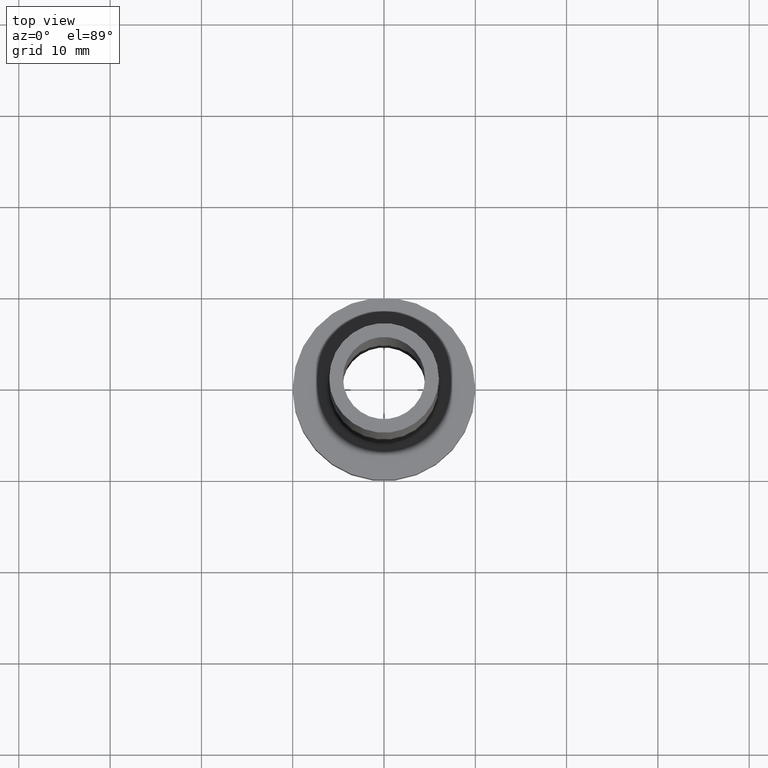
[diagram: clean part render]
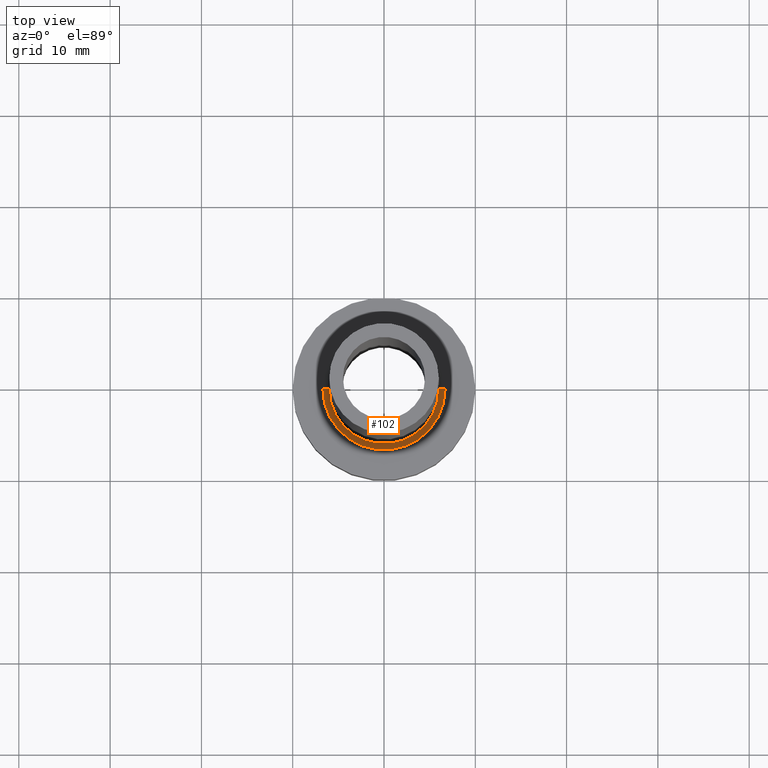
[diagram: same view with one face highlighted and labeled with its STEP entity id]
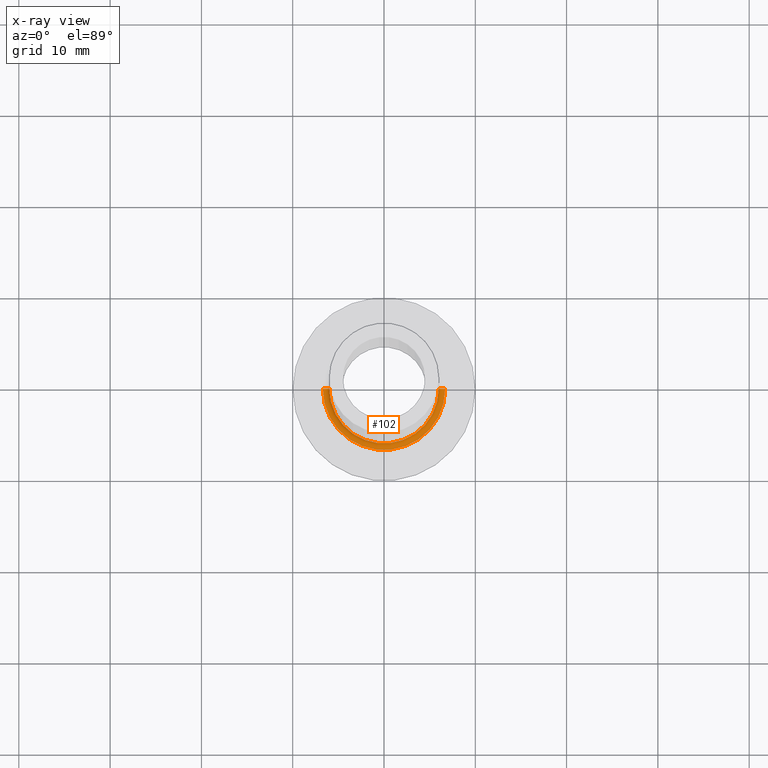
[diagram: x-ray of the same camera — body ghosted, the highlighted face saturated]
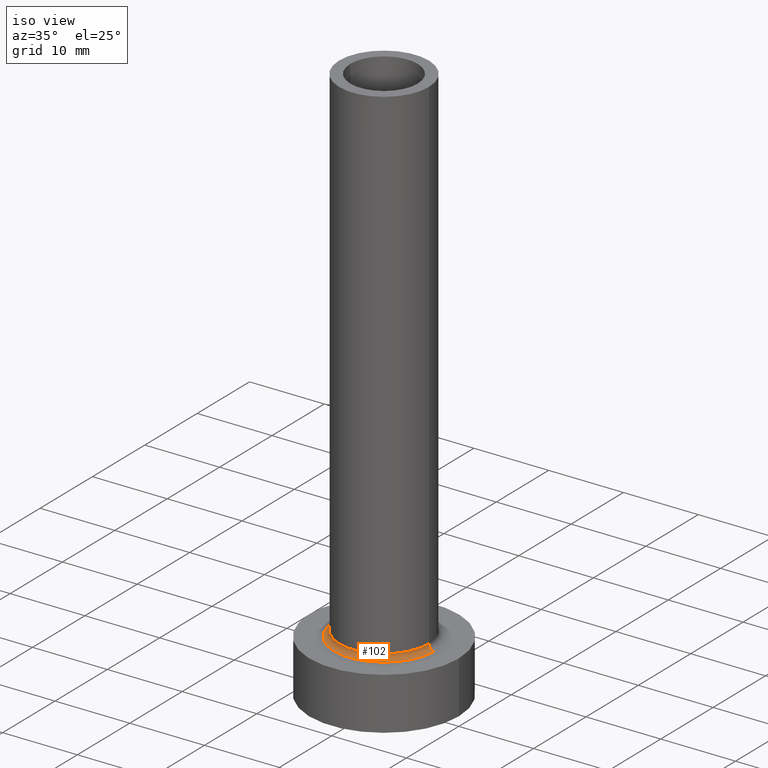
[diagram: same view with one face highlighted and labeled with its STEP entity id]
A machine part, top view. The second image highlights one B-rep face of the part: STEP entity #102.
The next image is the same camera in x-ray: the body ghosted, the highlighted face saturated — about 0% of this face is hidden behind the body in this view.
A second angle (iso view) of the same face is appended — the face is thin or edge-on in the first view.
In plain terms, the highlighted toroidal blend (fillet) surface has major radius 6.7 mm and minor (blend) radius 0.7 mm.
Its self-contained STEP definition (entity closure, byte-faithful):
#3 = VERTEX_POINT ( 'NONE', #38 ) ;
#24 = FACE_OUTER_BOUND ( 'NONE', #241, .T. ) ;
#38 = CARTESIAN_POINT ( 'NONE',  ( -6.000000000000000888, 0.000000000000000000, 7.699999999999998401 ) ) ;
#42 = VERTEX_POINT ( 'NONE', #179 ) ;
#50 = EDGE_CURVE ( 'NONE', #3, #391, #178, .T. ) ;
#54 = AXIS2_PLACEMENT_3D ( 'NONE', #327, #80, #294 ) ;
#61 = CARTESIAN_POINT ( 'NONE',  ( 6.700000000000001066, 0.000000000000000000, 6.999999999999999112 ) ) ;
#66 = CARTESIAN_POINT ( 'NONE',  ( -6.700000000000001066, 8.205133554287267548E-16, 7.699999999999998401 ) ) ;
#80 = DIRECTION ( 'NONE',  ( 0.000000000000000000, -1.000000000000000000, 0.000000000000000000 ) ) ;
#93 = DIRECTION ( 'NONE',  ( -0.000000000000000000, -0.000000000000000000, -1.000000000000000000 ) ) ;
#97 = CARTESIAN_POINT ( 'NONE',  ( 0.000000000000000000, 0.000000000000000000, 7.699999999999998401 ) ) ;
#102 = ADVANCED_FACE ( 'NONE', ( #24 ), #166, .F. ) ;
#104 = VERTEX_POINT ( 'NONE', #61 ) ;
#150 = EDGE_CURVE ( 'NONE', #3, #42, #260, .T. ) ;
#166 = TOROIDAL_SURFACE ( 'NONE', #373, 6.700000000000001066, 0.6999999999999999556 ) ;
#178 = CIRCLE ( 'NONE', #438, 6.000000000000000888 ) ;
#179 = CARTESIAN_POINT ( 'NONE',  ( -6.700000000000001066, 8.205133554287267548E-16, 6.999999999999999112 ) ) ;
#214 = DIRECTION ( 'NONE',  ( 1.224646799147353207E-16, 1.000000000000000000, -0.000000000000000000 ) ) ;
#215 = ORIENTED_EDGE ( 'NONE', *, *, #50, .F. ) ;
#217 = EDGE_CURVE ( 'NONE', #391, #104, #400, .T. ) ;
#236 = DIRECTION ( 'NONE',  ( 1.000000000000000000, 0.000000000000000000, 0.000000000000000000 ) ) ;
#241 = EDGE_LOOP ( 'NONE', ( #215, #277, #455, #250 ) ) ;
#250 = ORIENTED_EDGE ( 'NONE', *, *, #217, .F. ) ;
#251 = DIRECTION ( 'NONE',  ( 1.000000000000000000, 0.000000000000000000, 0.000000000000000000 ) ) ;
#254 = AXIS2_PLACEMENT_3D ( 'NONE', #66, #214, #350 ) ;
#260 = CIRCLE ( 'NONE', #254, 0.7000000000000000666 ) ;
#269 = CARTESIAN_POINT ( 'NONE',  ( 6.000000000000000888, 7.347880794884120722E-16, 7.699999999999998401 ) ) ;
#277 = ORIENTED_EDGE ( 'NONE', *, *, #150, .T. ) ;
#286 = DIRECTION ( 'NONE',  ( 0.000000000000000000, 0.000000000000000000, 1.000000000000000000 ) ) ;
#294 = DIRECTION ( 'NONE',  ( 0.000000000000000000, 0.000000000000000000, -1.000000000000000000 ) ) ;
#305 = DIRECTION ( 'NONE',  ( 1.000000000000000000, 0.000000000000000000, 0.000000000000000000 ) ) ;
#317 = CARTESIAN_POINT ( 'NONE',  ( 0.000000000000000000, 0.000000000000000000, 7.699999999999998401 ) ) ;
#327 = CARTESIAN_POINT ( 'NONE',  ( 6.700000000000001066, 0.000000000000000000, 7.699999999999998401 ) ) ;
#333 = CARTESIAN_POINT ( 'NONE',  ( 0.000000000000000000, 0.000000000000000000, 7.000000000000000000 ) ) ;
#350 = DIRECTION ( 'NONE',  ( -1.000000000000000000, 1.224646799147353454E-16, 0.000000000000000000 ) ) ;
#373 = AXIS2_PLACEMENT_3D ( 'NONE', #97, #382, #305 ) ;
#382 = DIRECTION ( 'NONE',  ( 0.000000000000000000, 0.000000000000000000, 1.000000000000000000 ) ) ;
#389 = CIRCLE ( 'NONE', #458, 6.700000000000001066 ) ;
#391 = VERTEX_POINT ( 'NONE', #269 ) ;
#400 = CIRCLE ( 'NONE', #54, 0.7000000000000000666 ) ;
#416 = EDGE_CURVE ( 'NONE', #104, #42, #389, .T. ) ;
#438 = AXIS2_PLACEMENT_3D ( 'NONE', #317, #286, #251 ) ;
#455 = ORIENTED_EDGE ( 'NONE', *, *, #416, .F. ) ;
#458 = AXIS2_PLACEMENT_3D ( 'NONE', #333, #93, #236 ) ;